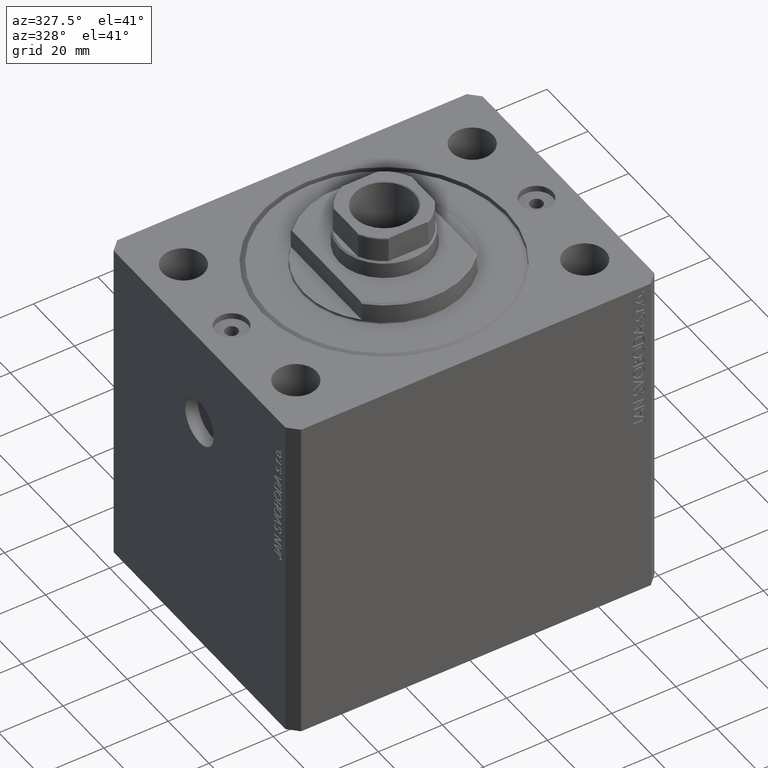
[diagram: clean part render]
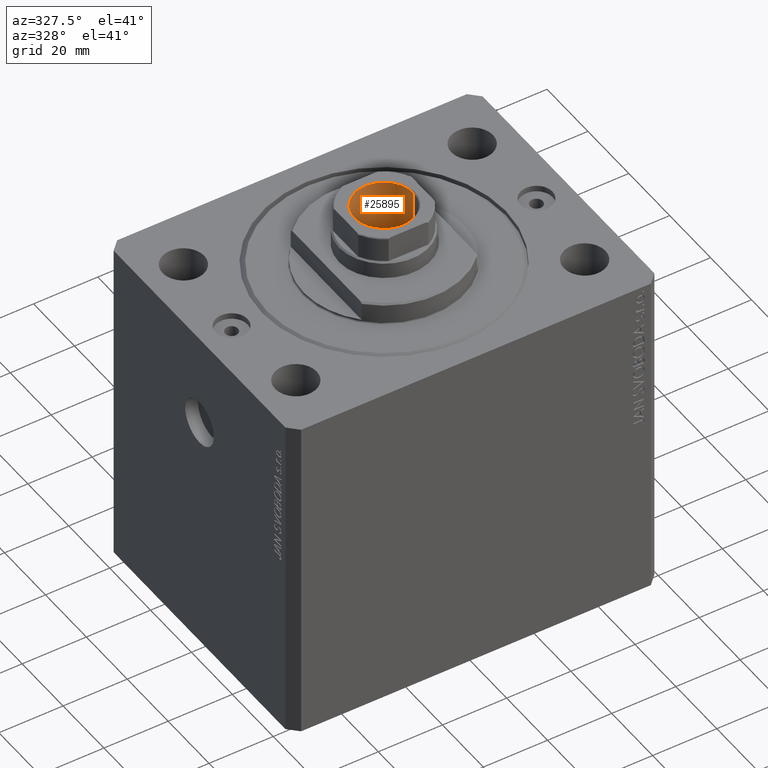
[diagram: same view with one face highlighted and labeled with its STEP entity id]
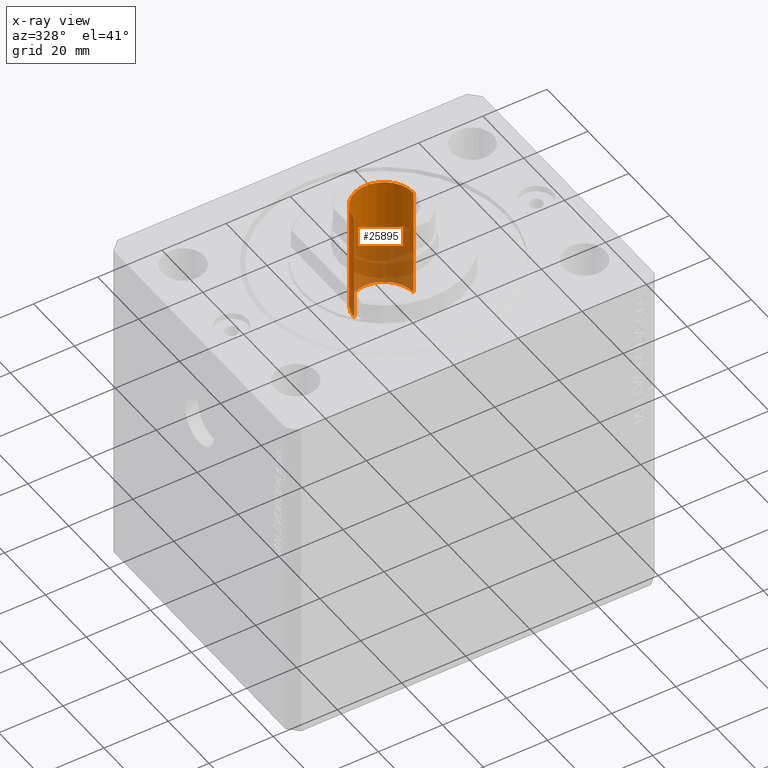
[diagram: x-ray of the same camera — body ghosted, the highlighted face saturated]
A machine part, auxiliary view. The second image highlights one B-rep face of the part: STEP entity #25895.
The next image is the same camera in x-ray: the body ghosted, the highlighted face saturated — about 51% of this face is hidden behind the body in this view.
In plain terms, the highlighted cylindrical surface (edge-blend (fillet) strip) has radius 9.25 mm, axis along (0, 0, 1).
Its self-contained STEP definition (entity closure, byte-faithful):
#100 = DIRECTION ( 'NONE',  ( -0.000000000000000000, -0.000000000000000000, 1.000000000000000000 ) ) ;
#617 = DIRECTION ( 'NONE',  ( -0.000000000000000000, -0.000000000000000000, 1.000000000000000000 ) ) ;
#2485 = VERTEX_POINT ( 'NONE', #5092 ) ;
#2782 = AXIS2_PLACEMENT_3D ( 'NONE', #20795, #100, #10664 ) ;
#4302 = EDGE_LOOP ( 'NONE', ( #13008, #38391, #36627, #24278 ) ) ;
#5092 = CARTESIAN_POINT ( 'NONE',  ( -9.249999999999994671, 1.132798289211300909E-15, 72.09999999999999432 ) ) ;
#10664 = DIRECTION ( 'NONE',  ( 1.000000000000000000, 0.000000000000000000, 0.000000000000000000 ) ) ;
#11215 = CIRCLE ( 'NONE', #13367, 9.249999999999996447 ) ;
#12839 = DIRECTION ( 'NONE',  ( 0.000000000000000000, 0.000000000000000000, 1.000000000000000000 ) ) ;
#13008 = ORIENTED_EDGE ( 'NONE', *, *, #30340, .F. ) ;
#13367 = AXIS2_PLACEMENT_3D ( 'NONE', #20455, #12839, #20241 ) ;
#14723 = FACE_OUTER_BOUND ( 'NONE', #4302, .T. ) ;
#15551 = EDGE_CURVE ( 'NONE', #37762, #35832, #11215, .T. ) ;
#17304 = VECTOR ( 'NONE', #42711, 1000.000000000000000 ) ;
#18220 = CARTESIAN_POINT ( 'NONE',  ( 9.249999999999996447, 0.000000000000000000, 107.0999999999999943 ) ) ;
#20241 = DIRECTION ( 'NONE',  ( 1.000000000000000000, 0.000000000000000000, 0.000000000000000000 ) ) ;
#20455 = CARTESIAN_POINT ( 'NONE',  ( 0.000000000000000000, 0.000000000000000000, 106.7999999999999972 ) ) ;
#20795 = CARTESIAN_POINT ( 'NONE',  ( 0.000000000000000000, 0.000000000000000000, 107.0999999999999943 ) ) ;
#21393 = AXIS2_PLACEMENT_3D ( 'NONE', #36127, #29152, #39512 ) ;
#24125 = EDGE_CURVE ( 'NONE', #30711, #2485, #24979, .T. ) ;
#24227 = CARTESIAN_POINT ( 'NONE',  ( -9.249999999999996447, 1.132798289211301304E-15, 107.0999999999999943 ) ) ;
#24278 = ORIENTED_EDGE ( 'NONE', *, *, #15551, .T. ) ;
#24845 = CARTESIAN_POINT ( 'NONE',  ( 9.249999999999994671, 0.000000000000000000, 72.09999999999999432 ) ) ;
#24979 = CIRCLE ( 'NONE', #21393, 9.249999999999994671 ) ;
#25895 = ADVANCED_FACE ( 'NONE', ( #14723 ), #41264, .F. ) ;
#28439 = CARTESIAN_POINT ( 'NONE',  ( -9.249999999999996447, 1.132798289211301304E-15, 106.7999999999999972 ) ) ;
#29152 = DIRECTION ( 'NONE',  ( -0.000000000000000000, -0.000000000000000000, 1.000000000000000000 ) ) ;
#30340 = EDGE_CURVE ( 'NONE', #2485, #35832, #35014, .T. ) ;
#30711 = VERTEX_POINT ( 'NONE', #24845 ) ;
#35014 = LINE ( 'NONE', #24227, #37304 ) ;
#35832 = VERTEX_POINT ( 'NONE', #28439 ) ;
#36127 = CARTESIAN_POINT ( 'NONE',  ( 0.000000000000000000, 0.000000000000000000, 72.09999999999999432 ) ) ;
#36413 = CARTESIAN_POINT ( 'NONE',  ( 9.249999999999996447, 0.000000000000000000, 106.7999999999999972 ) ) ;
#36627 = ORIENTED_EDGE ( 'NONE', *, *, #37671, .T. ) ;
#37304 = VECTOR ( 'NONE', #617, 1000.000000000000000 ) ;
#37671 = EDGE_CURVE ( 'NONE', #30711, #37762, #42057, .T. ) ;
#37762 = VERTEX_POINT ( 'NONE', #36413 ) ;
#38391 = ORIENTED_EDGE ( 'NONE', *, *, #24125, .F. ) ;
#39512 = DIRECTION ( 'NONE',  ( 1.000000000000000000, 0.000000000000000000, 0.000000000000000000 ) ) ;
#41264 = CYLINDRICAL_SURFACE ( 'NONE', #2782, 9.249999999999996447 ) ;
#42057 = LINE ( 'NONE', #18220, #17304 ) ;
#42711 = DIRECTION ( 'NONE',  ( -0.000000000000000000, -0.000000000000000000, 1.000000000000000000 ) ) ;